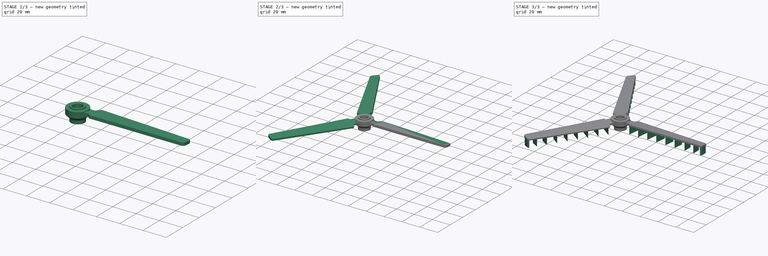
[diagram: build sequence overview — one tinted view per stage of 3, left to right]
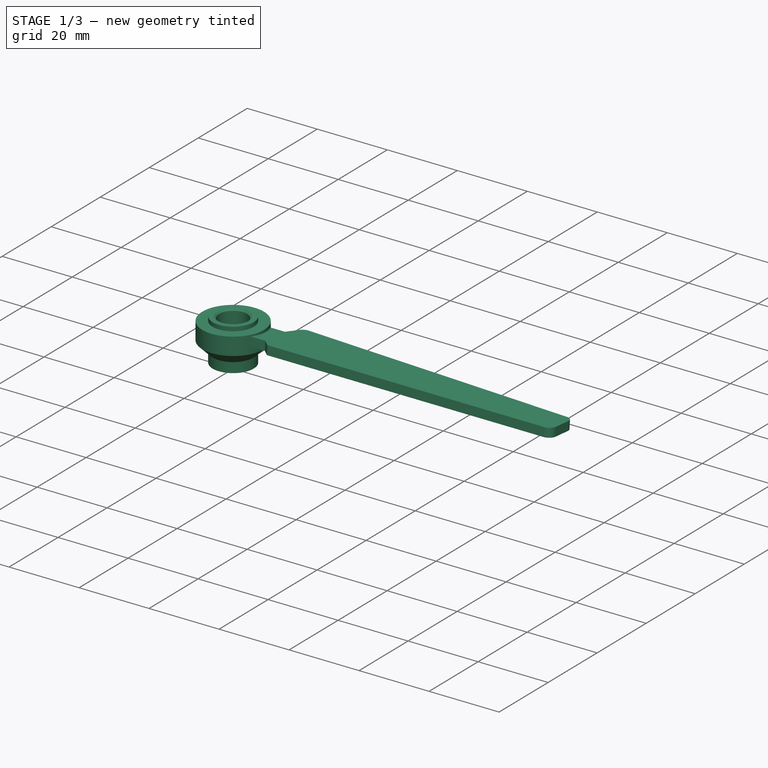
[diagram: stage 1 of 3 — iso view after this stage's code; geometry added in this stage tinted green]
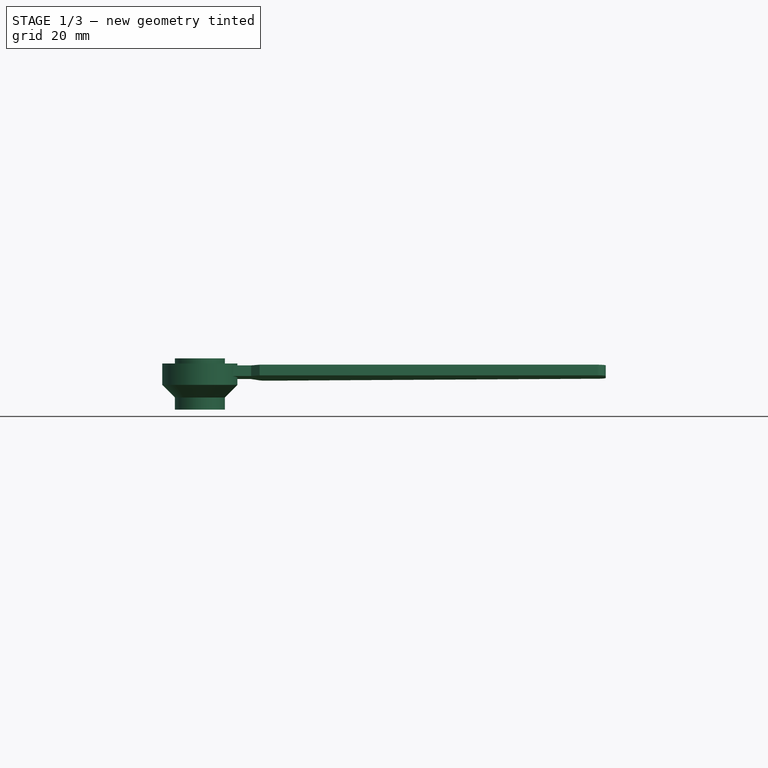
[diagram: stage 1 of 3 — front view after this stage's code; geometry added in this stage tinted green]
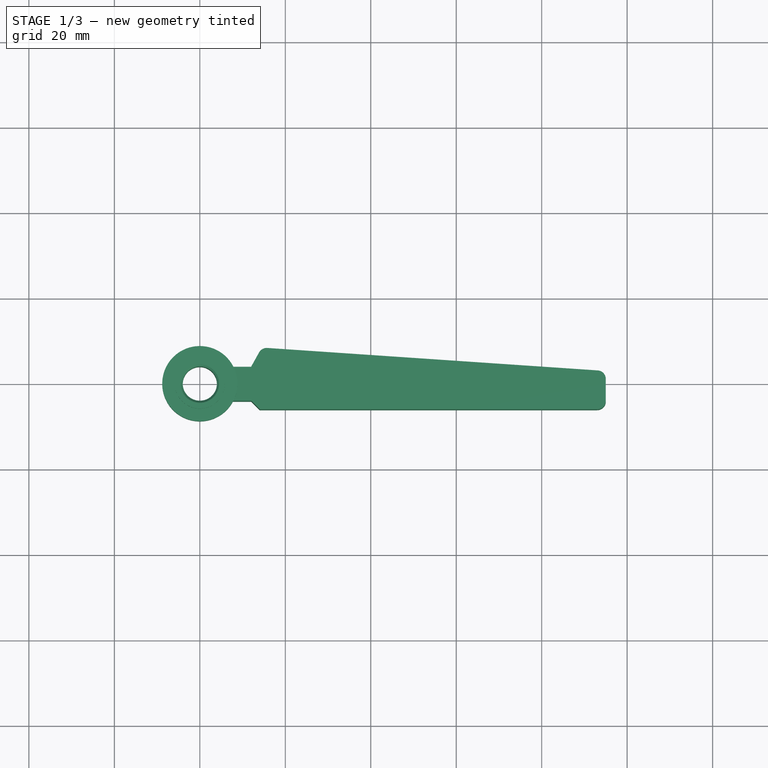
[diagram: stage 1 of 3 — top view after this stage's code; geometry added in this stage tinted green]
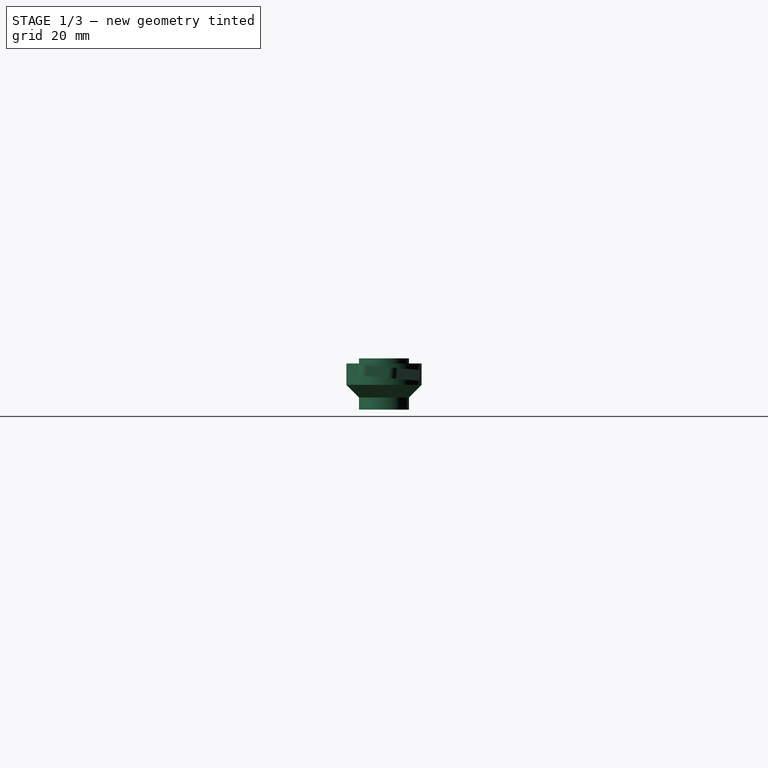
[diagram: stage 1 of 3 — right view after this stage's code; geometry added in this stage tinted green]
FCSTD DOCUMENT  (FreeCAD 1.0R39319 (Git))
Label: Playmobil5916Fix_Supported
License: All rights reserved
LicenseURL: https://en.wikipedia.org/wiki/All_rights_reserved
objects: Sketcher::SketchObject×4, PartDesign::Pad×2, PartDesign::PolarPattern×2, PartDesign::Revolution×1, PartDesign::Chamfer×1, PartDesign::Plane×1, PartDesign::Pocket×1, PartDesign::Fillet×1, PartDesign::Body×1
note: 32 computed .brp shape members not serialized (recipe doc carries the construction recipe); baked Part::Feature solids carry a one-line shape summary decoded from their .brp

FEATURE [Sketcher::SketchObject] Sketch
  ArcFitTolerance = 1e-06
  AttachmentSupport = -> [XZ_Plane]
  FullyConstrained = true
  MakeInternals = false
  MapMode = 5
  Placement = pos=(0,0,0) rot=(1,0,0;1.5708rad)
  expr: Constraints[17] = 11.7 / 2
  expr: Constraints[21] = 17.6 / 2
  expr: Constraints[22] = 8 / 2
  expr: Constraints[25] = 90 + 45
  sketch-geometry (9):
    g0: LineSegment StartX=4 StartY=0 StartZ=0 EndX=4 EndY=12 EndZ=0
    g1: LineSegment StartX=4 StartY=12 StartZ=0 EndX=5.85 EndY=12 EndZ=0
    g2: LineSegment StartX=5.85 StartY=12 StartZ=0 EndX=5.85 EndY=10.8 EndZ=0
    g3: LineSegment StartX=5.85 StartY=10.8 StartZ=0 EndX=8.8 EndY=10.8 EndZ=0
    g4: LineSegment StartX=8.8 StartY=10.8 StartZ=0 EndX=8.8 EndY=5.8 EndZ=0
    g5: LineSegment StartX=8.8 StartY=5.8 StartZ=0 EndX=5.85 EndY=2.85 EndZ=0
    g6: LineSegment StartX=5.85 StartY=2.85 StartZ=0 EndX=5.85 EndY=0 EndZ=0
    g7: LineSegment StartX=5.85 StartY=0 StartZ=0 EndX=4 EndY=0 EndZ=0
    g8: LineSegment [constr] StartX=5.85 StartY=10.8 StartZ=0 EndX=5.85 EndY=2.85 EndZ=0
  constraints (26):
    c: Distance(g0) = 12
    c: PointOnObject(g0,g-1)
    c: Vertical(g0)
    c: Coincident(g0,g1)
    c: Horizontal(g1)
    c: Coincident(g1,g2)
    c: Vertical(g2)
    c: Coincident(g2,g3)
    c: Horizontal(g3)
    c: Coincident(g3,g4)
    c: Vertical(g4)
    c: Coincident(g4,g5)
    c: Coincident(g5,g6)
    c: PointOnObject(g6,g-1)
    c: Vertical(g6)
    c: Coincident(g6,g7)
    c: Coincident(g7,g0)
    c: DistanceX(g-1,g6) = 5.85
    c: Coincident(g8,g2)
    c: Coincident(g8,g5)
    c: Vertical(g8)
    c: DistanceX(g-1,g4) = 8.8
    c: DistanceX(g-1,g0) = 4
    c: DistanceY(g2,g2) = 1.2
    c: DistanceY(g6,g4) = 5.8
    c: Angle(g6,g5) = 2.35619
FEATURE [PartDesign::Revolution] Revolution
  Angle = 360
  Angle2 = 60
  Axis = (0,2e-16,1)
  Base = (0,0,0)
  Placement = pos=(0,0,0) rot=(1,0,0;1.5708rad)
  Profile = -> Sketch
  ReferenceAxis = -> Sketch [V_Axis]
  Refine = true
  Reversed = true
  Suppressed = false
  Type = 0
FEATURE [PartDesign::Chamfer] Chamfer
  Angle = 45
  Base = -> Revolution [Edge2]
  BaseFeature = -> Revolution
  ChamferType = 0
  FlipDirection = false
  Placement = pos=(0,0,0) rot=(1,0,0;1.5708rad)
  Refine = true
  Size = 0.5
  Size2 = 1
  SupportTransform = false
  Suppressed = false
  UseAllEdges = false
FEATURE [PartDesign::Plane] DatumPlane
  AttachmentOffset = pos=(0,0,10) rot=(-1,0,0;0.087266rad)
  AttachmentSupport = -> [XY_Plane]
  Length = 178.854
  MapMode = 5
  Placement = pos=(0,0,10) rot=(-1,0,0;0.087266rad)
  ResizeMode = 0
  Width = 203.151
FEATURE [Sketcher::SketchObject] Sketch002
  ArcFitTolerance = 1e-06
  AttachmentSupport = -> [DatumPlane]
  FullyConstrained = true
  MakeInternals = false
  MapMode = 5
  Placement = pos=(0,1e-16,10) rot=(-1,0,0;0.087266rad)
  sketch-geometry (15):
    g0: LineSegment StartX=7 StartY=4 StartZ=0 EndX=7 EndY=-4 EndZ=0
    g1: LineSegment StartX=7 StartY=-4 StartZ=0 EndX=12 EndY=-4 EndZ=0
    g2: LineSegment StartX=12 StartY=-4 StartZ=0 EndX=14 EndY=-6 EndZ=0
    g3: LineSegment StartX=14 StartY=-6 StartZ=0 EndX=93 EndY=-6 EndZ=0
    g4: LineSegment StartX=95 StartY=-4 StartZ=0 EndX=95 EndY=1.13198 EndZ=0
    g5: LineSegment StartX=93.1363 StartY=3.12733 StartZ=0 EndX=15.7676 EndY=8.41339 EndZ=0
    g6: LineSegment StartX=13.883 StartY=7.38933 StartZ=0 EndX=12 EndY=4 EndZ=0
    g7: LineSegment StartX=12 StartY=4 StartZ=0 EndX=7 EndY=4 EndZ=0
    g8: LineSegment [constr] StartX=12 StartY=4 StartZ=0 EndX=12 EndY=-4 EndZ=0
    g9: ArcOfCircle CenterX=93 CenterY=-4 CenterZ=0 NormalX=0 NormalY=0 NormalZ=1 AngleXU=0 Radius=2 StartAngle=4.71239 EndAngle=6.28319
    g10: GeomPoint [constr] X=95 Y=-6 Z=0
    g11: ArcOfCircle CenterX=93 CenterY=1.13198 CenterZ=0 NormalX=0 NormalY=0 NormalZ=1 AngleXU=0 Radius=2 StartAngle=0 EndAngle=1.50258
    g12: GeomPoint [constr] X=95 Y=3 Z=0
    g13: ArcOfCircle CenterX=15.6313 CenterY=6.41805 CenterZ=0 NormalX=0 NormalY=0 NormalZ=1 AngleXU=0 Radius=2 StartAngle=1.50258 EndAngle=2.63449
    g14: GeomPoint [constr] X=14.5 Y=8.5 Z=0
  constraints (37):
    c: Coincident(g0,g1)
    c: Horizontal(g1)
    c: Coincident(g1,g2)
    c: Coincident(g2,g3)
    c: Horizontal(g3)
    c: Coincident(g6,g7)
    c: Coincident(g7,g0)
    c: Horizontal(g7)
    c: Symmetric(g0,g0,g-1)
    c: Equal(g7,g1)
    c: DistanceX(g-1,g0) = 7
    c: DistanceX(g-1,g10) = 95
    c: Vertical(g4)
    c: DistanceY(g10,g12) = 9
    c: DistanceY(g2,g14) = 14.5
    c: DistanceY(g0,g0) = 8
    c: DistanceY(g2,g1) = 2
    c: Coincident(g8,g6)
    c: Coincident(g8,g1)
    c: DistanceX(g6,g14) = 2.5
    c: DistanceX(g1,g2) = 2
    c: DistanceX(g7,g7) = 5
    c: PointOnObject(g10,g3)
    c: PointOnObject(g10,g4)
    c: Tangent(g3,g9) = -1.5708
    c: Tangent(g4,g9) = -1.5708
    c: PointOnObject(g12,g5)
    c: PointOnObject(g12,g4)
    c: Tangent(g5,g11) = -1.5708
    c: Tangent(g4,g11) = -1.5708
    c: Equal(g11,g9)
    c: Radius(g11) = 2
    c: PointOnObject(g14,g5)
    c: PointOnObject(g14,g6)
    c: Tangent(g5,g13) = -1.5708
    c: Tangent(g6,g13) = -1.5708
    c: Radius(g13) = 2
FEATURE [PartDesign::Pad] Pad001
  BaseFeature = -> Chamfer
  Direction = (0,0.0871557,0.996195)
  Length = 2.5
  Length2 = 10
  Placement = pos=(0,0,0) rot=(1,0,0;1.5708rad)
  Profile = -> Sketch002
  ReferenceAxis = -> Sketch002 [N_Axis]
  Refine = true
  Reversed = true
  Suppressed = false
  Type = 0
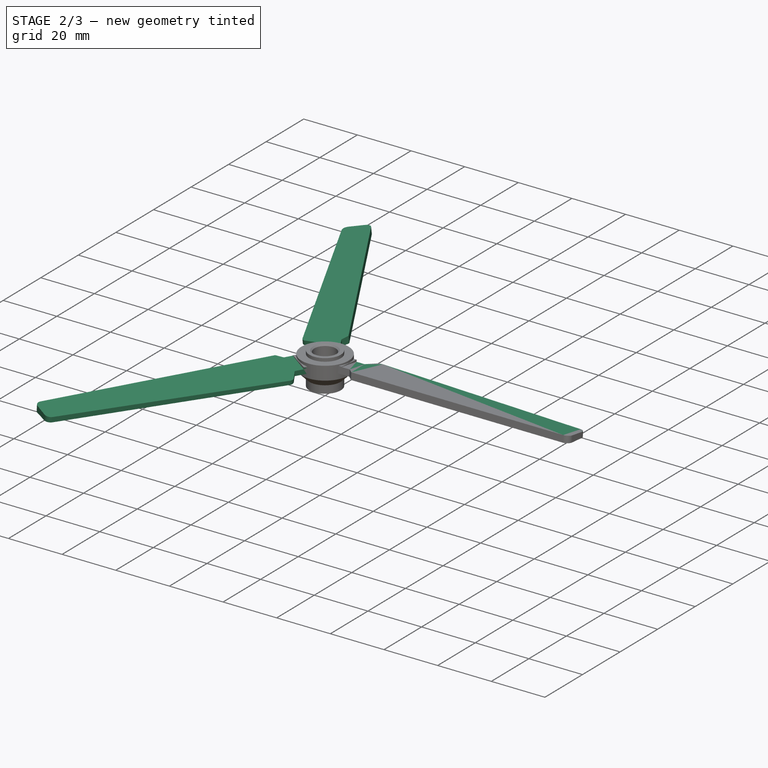
[diagram: stage 2 of 3 — iso view after this stage's code; geometry added in this stage tinted green]
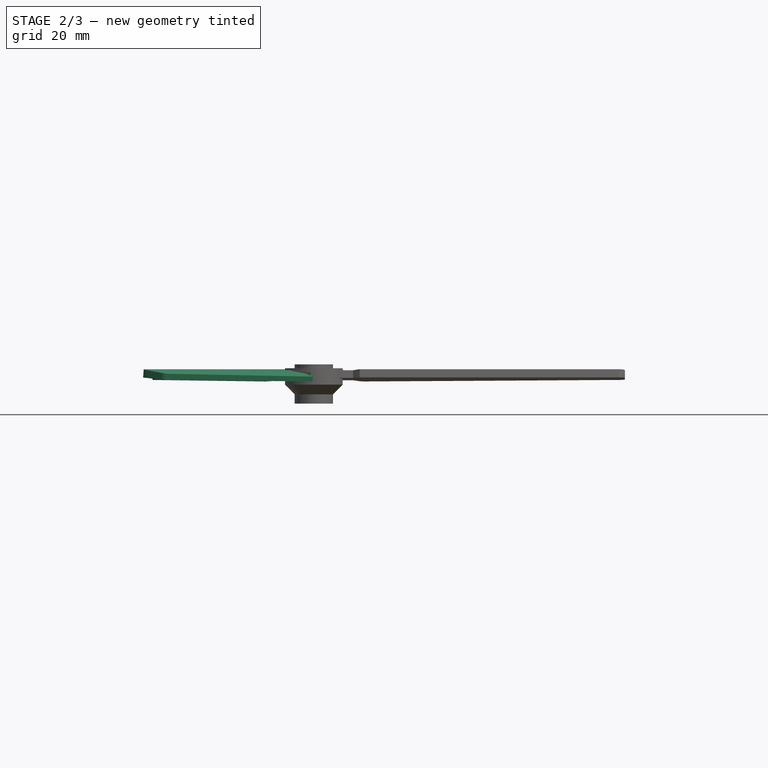
[diagram: stage 2 of 3 — front view after this stage's code; geometry added in this stage tinted green]
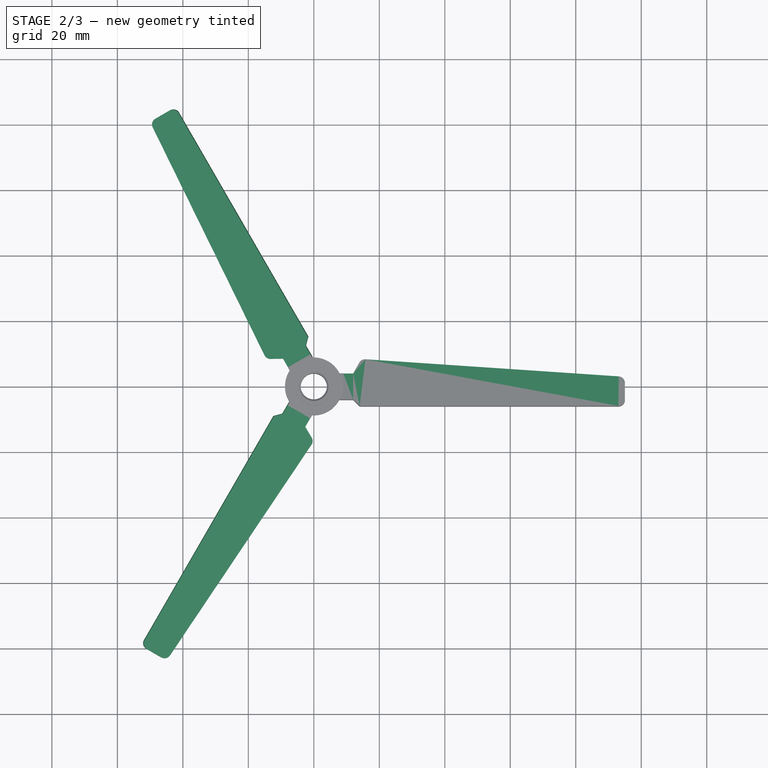
[diagram: stage 2 of 3 — top view after this stage's code; geometry added in this stage tinted green]
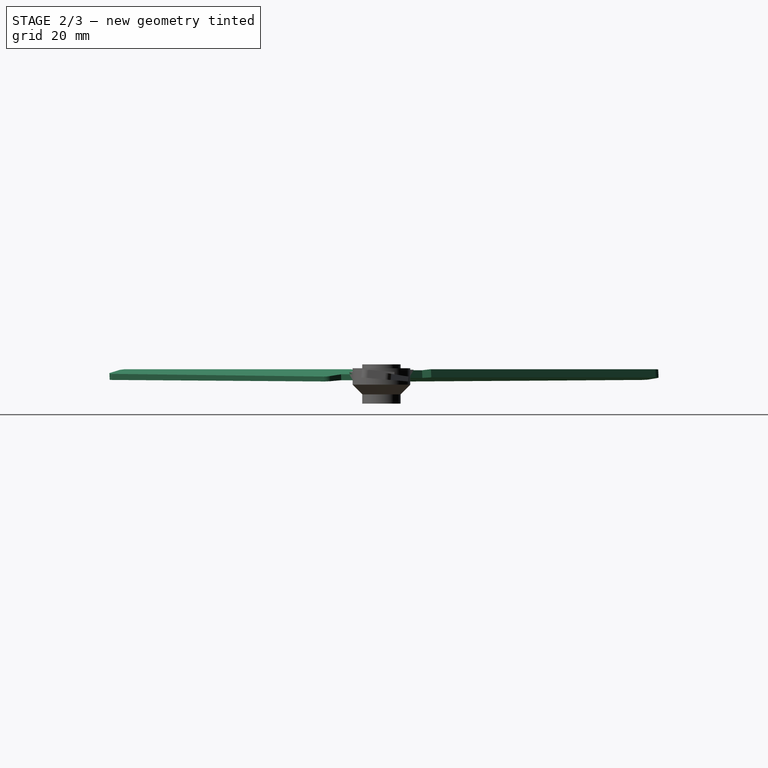
[diagram: stage 2 of 3 — right view after this stage's code; geometry added in this stage tinted green]
FEATURE [Sketcher::SketchObject] Sketch003
  ArcFitTolerance = 1e-06
  AttachmentSupport = -> [Pad001]
  ExternalGeometry = -> [Pad001]
  FullyConstrained = true
  MakeInternals = false
  MapMode = 5
  Placement = pos=(95,0,0) rot=(0.707107,0,0.707107;3.14159rad)
  sketch-geometry (4):
    g0: LineSegment StartX=10.8386 StartY=7.97717 StartZ=0 EndX=7.78329 EndY=-11.3814 EndZ=0
    g1: LineSegment StartX=7.78329 StartY=-11.3814 StartZ=0 EndX=10.8386 EndY=-11.3814 EndZ=0
    g2: LineSegment StartX=10.8386 StartY=-11.3814 StartZ=0 EndX=10.8386 EndY=7.97717 EndZ=0
    g3: GeomPoint X=8.27053 Y=-8.29422 Z=0
  constraints (11):
    c: Coincident(g0,g1)
    c: Horizontal(g1)
    c: Coincident(g1,g2)
    c: Coincident(g2,g0)
    c: Vertical(g2)
    c: PointOnObject(g-3,g0)
    c: DistanceY(g-3,g0) = 2
    c: DistanceY(g0,g-4) = 3
    c: PointOnObject(g3,g0)
    c: PointOnObject(g3,g-4)
    c: Distance(g-4,g3) = 1.5
FEATURE [PartDesign::Pocket] Pocket
  BaseFeature = -> Pad001
  Direction = (-1,0,2e-16)
  Length = 86
  Length2 = 5
  Placement = pos=(0,0,0) rot=(1,0,0;1.5708rad)
  Profile = -> Sketch003
  ReferenceAxis = -> Sketch003 [N_Axis]
  Refine = true
  Suppressed = false
  Type = 0
FEATURE [PartDesign::PolarPattern] PolarPattern001
  Angle = 360
  Axis = -> Z_Axis
  BaseFeature = -> Pocket
  Mode = 0
  Occurrences = 3
  Offset = 120
  Originals = -> [Pad001,Pocket]
  Placement = pos=(0,0,0) rot=(1,0,0;1.5708rad)
  Refine = true
  Suppressed = false
  TransformMode = 0
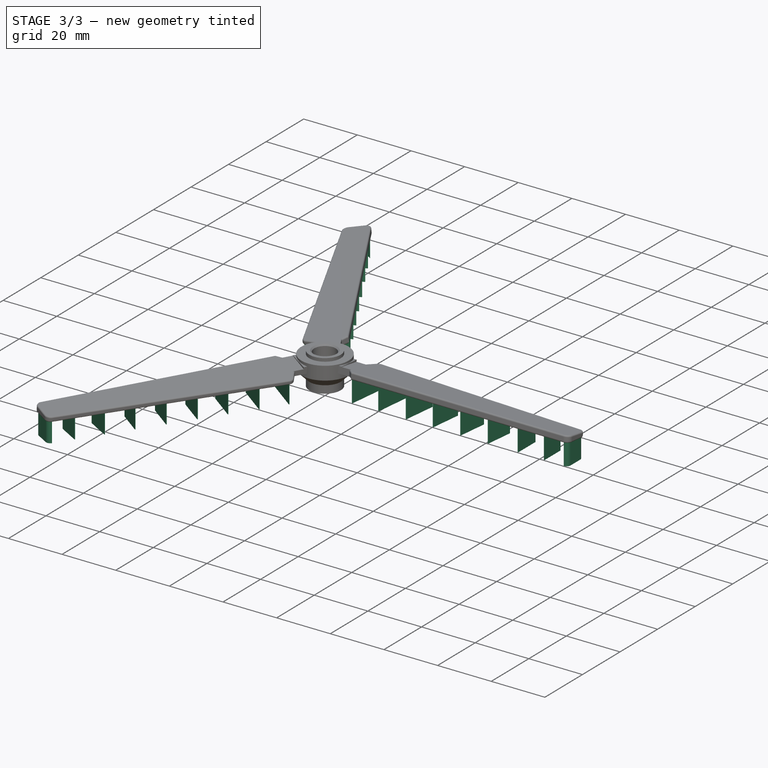
[diagram: stage 3 of 3 — iso view after this stage's code; geometry added in this stage tinted green]
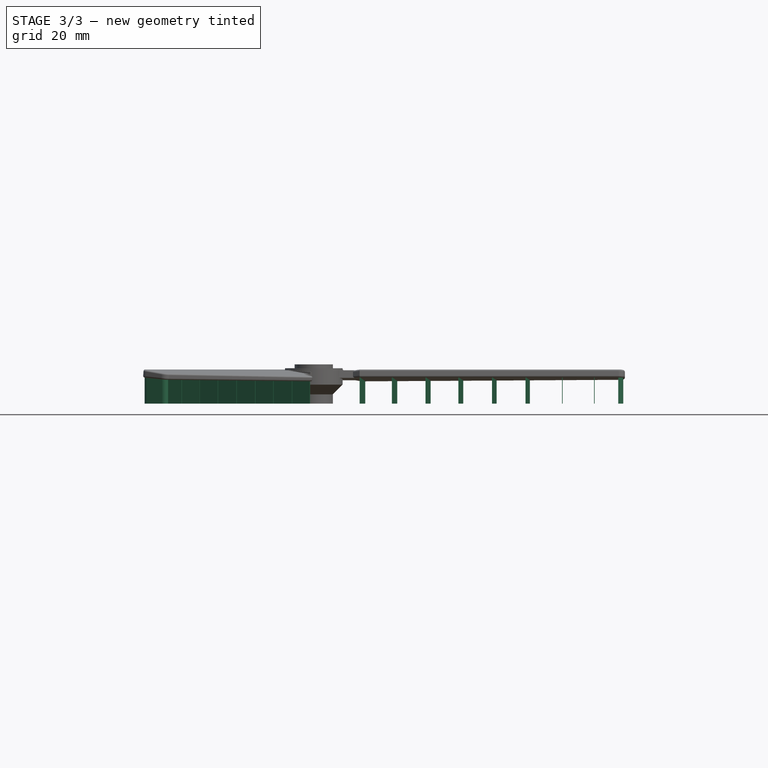
[diagram: stage 3 of 3 — front view after this stage's code; geometry added in this stage tinted green]
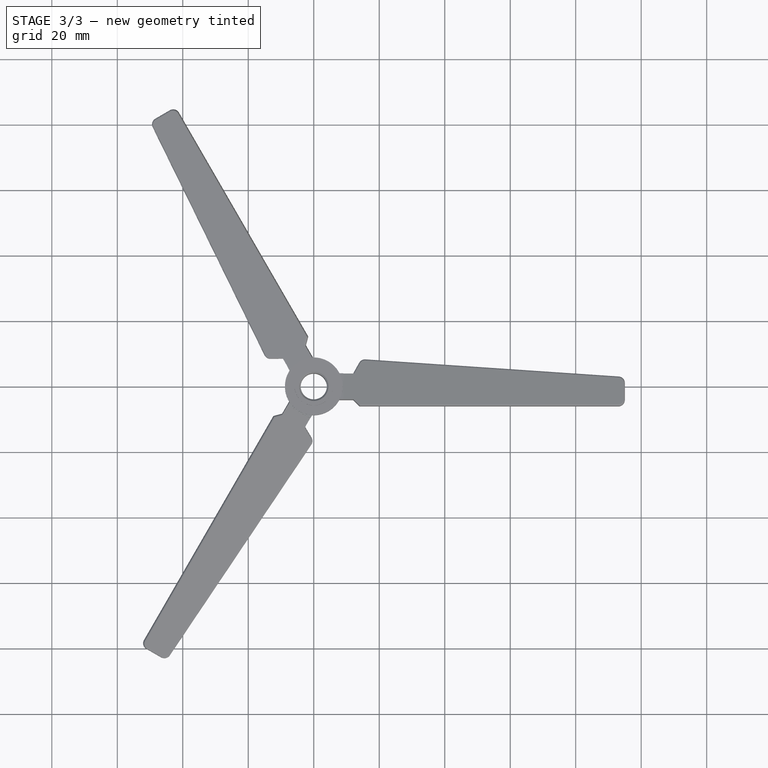
[diagram: stage 3 of 3 — top view after this stage's code; geometry added in this stage tinted green]
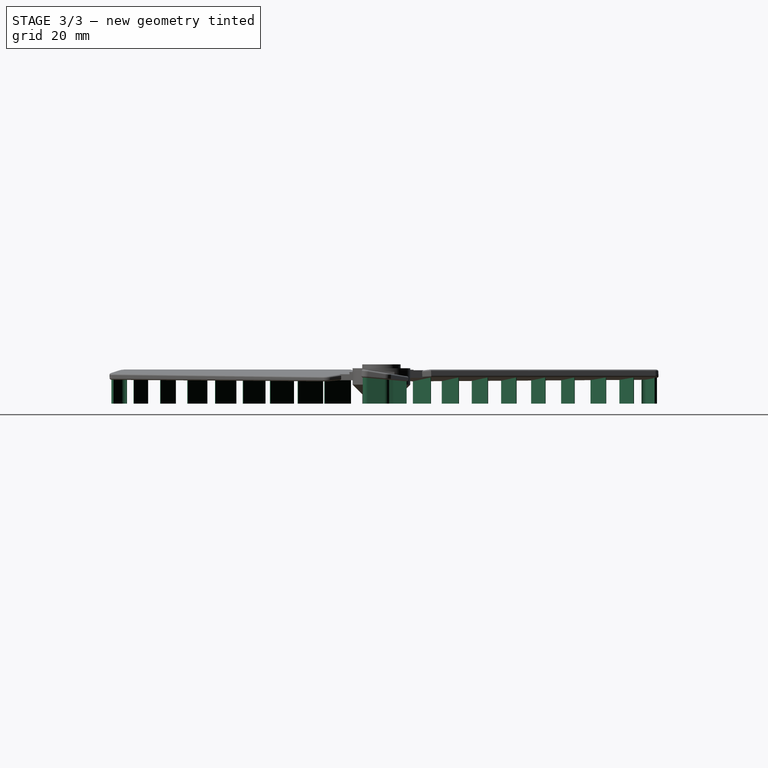
[diagram: stage 3 of 3 — right view after this stage's code; geometry added in this stage tinted green]
FEATURE [PartDesign::Fillet] Fillet
  Base = -> PolarPattern001 [Edge124,Edge72,Edge41,Edge91,Edge53,Edge108,Edge77,Edge134,Edge118,Edge58,Edge94,Edge46]
  BaseFeature = -> PolarPattern001
  Placement = pos=(0,0,0) rot=(1,0,0;1.5708rad)
  Radius = 0.5
  Refine = true
  SupportTransform = false
  Suppressed = false
  UseAllEdges = false
FEATURE [Sketcher::SketchObject] Sketch004
  ArcFitTolerance = 1e-06
  AttachmentSupport = -> [XY_Plane]
  ExternalGeometry = -> [Fillet]
  FullyConstrained = true
  MakeInternals = false
  MapMode = 5
  expr: Constraints[90] = .Constraints.bridge
  expr: Constraints[91] = .Constraints.bridge
  expr: Constraints[92] = .Constraints.bridge
  expr: Constraints[93] = .Constraints.bridge
  expr: Constraints[94] = .Constraints.bridge
  expr: Constraints[95] = .Constraints.bridge
  sketch-geometry (44):
    g0: LineSegment StartX=-12.0373 StartY=-9.45524 StartZ=0 EndX=-1.22733 EndY=-17.4589 EndZ=0
    g1: LineSegment StartX=-1.22733 StartY=-17.4589 StartZ=0 EndX=-1.1158 EndY=-17.2929 EndZ=0
    g2: LineSegment StartX=-1.1158 StartY=-17.2929 StartZ=0 EndX=-11.9367 EndY=-9.28109 EndZ=0
    g3: LineSegment StartX=-11.9367 StartY=-9.28109 StartZ=0 EndX=-12.0373 EndY=-9.45524 EndZ=0
    g4: LineSegment StartX=-16.964 StartY=-17.9885 StartZ=0 EndX=-16.8634 EndY=-17.8144 EndZ=0
    g5: LineSegment StartX=-16.8634 StartY=-17.8144 StartZ=0 EndX=-6.58081 EndY=-25.4276 EndZ=0
    g6: LineSegment StartX=-6.58081 StartY=-25.4276 StartZ=0 EndX=-6.69234 EndY=-25.5936 EndZ=0
    g7: LineSegment StartX=-6.69234 StartY=-25.5936 StartZ=0 EndX=-16.964 EndY=-17.9885 EndZ=0
    g8: LineSegment StartX=-21.9912 StartY=-26.696 StartZ=0 EndX=-12.2689 EndY=-33.8944 EndZ=0
    g9: LineSegment StartX=-12.2689 StartY=-33.8944 StartZ=0 EndX=-12.3804 EndY=-34.0604 EndZ=0
    g10: LineSegment StartX=-12.3804 StartY=-34.0604 StartZ=0 EndX=-22.0917 EndY=-26.8701 EndZ=0
    g11: LineSegment StartX=-22.0917 StartY=-26.8701 StartZ=0 EndX=-21.9912 EndY=-26.696 EndZ=0
    g12: LineSegment StartX=-27.0184 StartY=-35.4034 StartZ=0 EndX=-17.8454 EndY=-42.1951 EndZ=0
    g13: LineSegment StartX=-17.8454 StartY=-42.1951 StartZ=0 EndX=-17.957 EndY=-42.3611 EndZ=0
    g14: LineSegment StartX=-17.957 StartY=-42.3611 StartZ=0 EndX=-27.119 EndY=-35.5775 EndZ=0
    g15: LineSegment StartX=-27.119 StartY=-35.5775 StartZ=0 EndX=-27.0184 EndY=-35.4034 EndZ=0
    g16: LineSegment StartX=-32.1462 StartY=-44.285 StartZ=0 EndX=-23.5335 EndY=-50.6618 EndZ=0
    g17: LineSegment StartX=-23.5335 StartY=-50.6618 StartZ=0 EndX=-23.645 EndY=-50.8279 EndZ=0
    g18: LineSegment StartX=-23.645 StartY=-50.8279 StartZ=0 EndX=-32.2468 EndY=-44.4591 EndZ=0
    g19: LineSegment StartX=-32.2468 StartY=-44.4591 StartZ=0 EndX=-32.1462 EndY=-44.285 EndZ=0
    g20: LineSegment StartX=-37.3746 StartY=-53.3407 StartZ=0 EndX=-29.3331 EndY=-59.2946 EndZ=0
    g21: LineSegment StartX=-29.3331 StartY=-59.2946 StartZ=0 EndX=-29.2216 EndY=-59.1286 EndZ=0
    g22: LineSegment StartX=-29.2216 StartY=-59.1286 StartZ=0 EndX=-37.274 EndY=-53.1666 EndZ=0
    g23: LineSegment StartX=-37.274 StartY=-53.1666 StartZ=0 EndX=-37.3746 EndY=-53.3407 EndZ=0
    g24: LineSegment StartX=-42.9308 StartY=-62.9643 StartZ=0 EndX=-34.9096 EndY=-67.5953 EndZ=0
    g25: LineSegment StartX=-34.9096 StartY=-67.5953 StartZ=0 EndX=-34.7981 EndY=-67.4293 EndZ=0
    g26: LineSegment StartX=-34.7981 StartY=-67.4293 StartZ=0 EndX=-42.831 EndY=-62.7915 EndZ=0
    g27: LineSegment StartX=-42.831 StartY=-62.7915 StartZ=0 EndX=-42.9308 EndY=-62.9643 EndZ=0
    g28: LineSegment StartX=-47.8195 StartY=-71.4318 StartZ=0 EndX=-40.3747 EndY=-75.7301 EndZ=0
    g29: LineSegment StartX=-40.3747 StartY=-75.7301 StartZ=0 EndX=-40.2631 EndY=-75.564 EndZ=0
    g30: LineSegment StartX=-40.2631 StartY=-75.564 StartZ=0 EndX=-47.7197 EndY=-71.259 EndZ=0
    g31: LineSegment StartX=-47.7197 StartY=-71.259 StartZ=0 EndX=-47.8195 EndY=-71.4318 EndZ=0
    g32: LineSegment StartX=-50.8896 StartY=-79.7381 StartZ=0 EndX=-46.4621 EndY=-82.2943 EndZ=0
    g33: LineSegment StartX=-44.4721 StartY=-81.8292 StartZ=0 EndX=-44.6094 EndY=-81.6837 EndZ=0
    g34: LineSegment StartX=-51.2609 StartY=-77.7925 StartZ=0 EndX=-51.4337 EndY=-77.6919 EndZ=0
    g35: ArcOfCircle CenterX=-50.1425 CenterY=-78.444 CenterZ=0 NormalX=0 NormalY=0 NormalZ=1 AngleXU=0 Radius=1.4943 StartAngle=2.61418 EndAngle=4.18879
    g36: ArcOfCircle CenterX=-45.7148 CenterY=-81.002 CenterZ=0 NormalX=0 NormalY=0 NormalZ=1 AngleXU=0 Radius=1.49279 StartAngle=4.18809 EndAngle=5.69588
    g37: ArcOfCircle CenterX=-45.7121 CenterY=-80.9953 CenterZ=0 NormalX=0 NormalY=0 NormalZ=1 AngleXU=0 Radius=1.3 StartAngle=4.18879 EndAngle=5.72507
    g38: ArcOfCircle CenterX=-50.1425 CenterY=-78.444 CenterZ=0 NormalX=0 NormalY=0 NormalZ=1 AngleXU=0 Radius=1.2943 StartAngle=2.61418 EndAngle=4.18879
    g39: GeomPoint [constr] X=-50.8896 Y=-79.7381 Z=0
    g40: LineSegment [constr] StartX=-46.3621 StartY=-82.1211 StartZ=0 EndX=-46.4621 EndY=-82.2943 EndZ=0
    g41: LineSegment [constr] StartX=-50.7896 StartY=-79.5649 StartZ=0 EndX=-50.8896 EndY=-79.7381 EndZ=0
    g42: LineSegment StartX=-50.7896 StartY=-79.5649 StartZ=0 EndX=-46.3621 EndY=-82.1211 EndZ=0
    g43: GeomPoint [constr] X=-47.1435 Y=-81.4346 Z=0
  constraints (124):
    c: Coincident(g-5,g0)
    c: Coincident(g0,g-3)
    c: Coincident(g0,g1)
    c: PointOnObject(g1,g-3)
    c: Coincident(g1,g2)
    c: PointOnObject(g2,g-5)
    c: Coincident(g2,g3)
    c: Coincident(g3,g0)
    c: Parallel(g2,g0)
    c: Distance(g1) = 0.2
    c: PointOnObject(g4,g-5)
    c: PointOnObject(g4,g-5)
    c: Coincident(g4,g5)
    c: PointOnObject(g5,g-3)
    c: Coincident(g5,g6)
    c: PointOnObject(g6,g-3)
    c: Coincident(g6,g7)
    c: Coincident(g7,g4)
    c: Parallel(g5,g7)
    c: Parallel(g7,g2)
    c: Equal(g1,g6)
    c: Distance(g6,g1) = 10  'bridge'
    c: PointOnObject(g8,g-5)
    c: PointOnObject(g8,g-3)
    c: Coincident(g8,g9)
    c: PointOnObject(g9,g-3)
    c: Coincident(g9,g10)
    c: PointOnObject(g10,g-5)
    c: Coincident(g10,g11)
    c: Coincident(g11,g8)
    c: PointOnObject(g12,g-5)
    c: PointOnObject(g12,g-3)
    c: Coincident(g12,g13)
    c: PointOnObject(g13,g-3)
    c: Coincident(g13,g14)
    c: PointOnObject(g14,g-5)
    c: Coincident(g14,g15)
    c: Coincident(g15,g12)
    c: PointOnObject(g16,g-5)
    c: PointOnObject(g16,g-3)
    c: Coincident(g16,g17)
    c: PointOnObject(g17,g-3)
    c: Coincident(g17,g18)
    c: PointOnObject(g18,g-5)
    c: Coincident(g18,g19)
    c: Coincident(g19,g16)
    c: PointOnObject(g20,g-5)
    c: PointOnObject(g20,g-3)
    c: Coincident(g20,g21)
    c: PointOnObject(g21,g-3)
    c: Coincident(g21,g22)
    c: PointOnObject(g22,g-5)
    c: Coincident(g22,g23)
    c: Coincident(g23,g20)
    c: PointOnObject(g24,g-5)
    c: PointOnObject(g24,g-3)
    c: Coincident(g24,g25)
    c: PointOnObject(g25,g-3)
    c: Coincident(g25,g26)
    c: PointOnObject(g26,g-5)
    c: Coincident(g26,g27)
    c: Coincident(g27,g24)
    c: PointOnObject(g28,g-5)
    c: PointOnObject(g28,g-3)
    c: Coincident(g28,g29)
    c: PointOnObject(g29,g-3)
    c: Coincident(g29,g30)
    c: PointOnObject(g30,g-5)
    c: Coincident(g30,g31)
    c: Coincident(g31,g28)
    c: Coincident(g32,g-4)
    c: Parallel(g7,g8)
    c: Parallel(g8,g10)
    c: Parallel(g10,g12)
    c: Parallel(g12,g14)
    c: Parallel(g14,g16)
    c: Parallel(g18,g16)
    c: Parallel(g18,g22)
    c: Parallel(g22,g20)
    c: Parallel(g30,g28)
    c: Parallel(g28,g26)
    c: Parallel(g26,g24)
    c: Equal(g9,g13)
    c: Equal(g13,g17)
    c: Equal(g17,g21)
    c: Equal(g21,g25)
    c: Equal(g25,g29)
    c: Equal(g29,g33)
    c: Equal(g6,g9)
    c: Equal(g33,g34)
    c: Distance(g6,g8) = 10
    c: Distance(g8,g12) = 10
    c: Distance(g13,g16) = 10
    c: Distance(g17,g21) = 10
    c: Distance(g20,g24) = 10
    c: Distance(g25,g28) = 10
    c: Coincident(g36,g32)
    c: Coincident(g37,g-6)
    c: Coincident(g37,g33)
    c: Coincident(g38,g35)
    c: Coincident(g38,g34)
    c: Coincident(g33,g36)
    c: Coincident(g-3,g33)
    c: Coincident(g32,g35)
    c: Coincident(g32,g-4)
    c: Coincident(g34,g35)
    c: Coincident(g34,g-5)
    c: PointOnObject(g39,g-7)
    c: PointOnObject(g39,g35)
    c: Tangent(g-7,g35,g39) = -1.5708
    c: Coincident(g40,g32)
    c: Coincident(g41,g39)
    c: Coincident(g42,g38)
    c: Coincident(g42,g37)
    c: Coincident(g37,g40)
    c: Coincident(g38,g41)
    c: Perpendicular(g40,g32)
    c: Perpendicular(g41,g32)
    c: Equal(g29,g40)
    c: Parallel(g42,g32)
    c: PointOnObject(g43,g-6)
    c: PointOnObject(g43,g36)
    c: Tangent(g-6,g36,g43) = -1.5708
    c: Parallel(g28,g32)
FEATURE [PartDesign::Pad] Pad
  BaseFeature = -> Fillet
  Direction = (0,0,1)
  Length = 10
  Length2 = 10
  Placement = pos=(0,0,0) rot=(1,0,0;1.5708rad)
  Profile = -> Sketch004
  ReferenceAxis = -> Sketch004 [N_Axis]
  Refine = true
  Suppressed = false
  Type = 2
FEATURE [PartDesign::PolarPattern] PolarPattern
  Angle = 360
  Axis = -> Sketch004 [N_Axis]
  BaseFeature = -> Pad
  Mode = 0
  Occurrences = 3
  Offset = 120
  Originals = -> [Pad]
  Placement = pos=(0,0,0) rot=(1,0,0;1.5708rad)
  Refine = true
  Suppressed = false
  TransformMode = 0
FEATURE [PartDesign::Body] Body
  AllowCompound = false
  Group = -> [Sketch,Revolution,Chamfer,DatumPlane,Sketch002,Pad001,Sketch003,Pocket,PolarPattern001,Fillet,Sketch004,Pad,PolarPattern]
  Origin = -> Origin
  Tip = -> PolarPattern
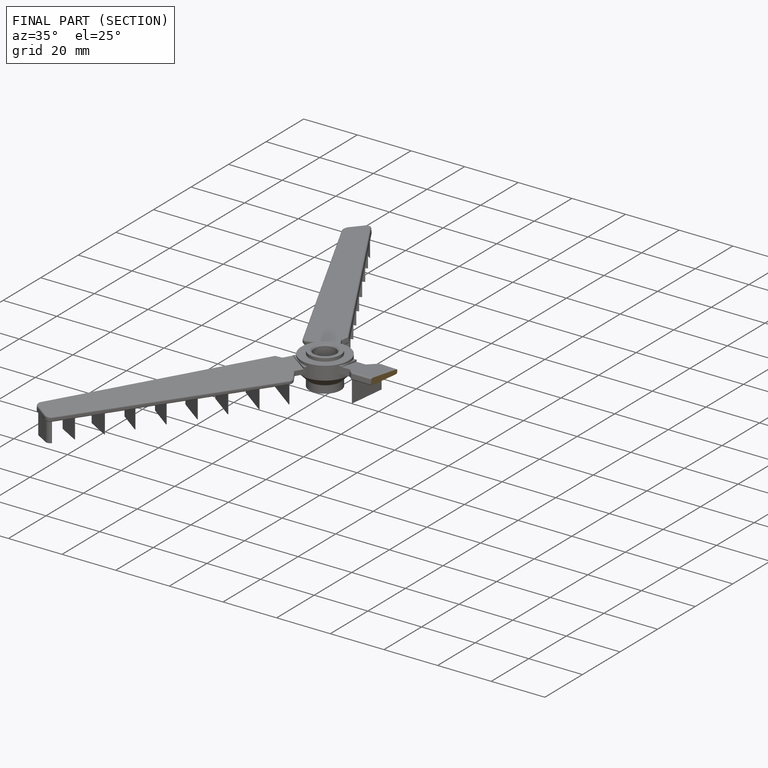
[diagram: finished part — half-section view (interior)]
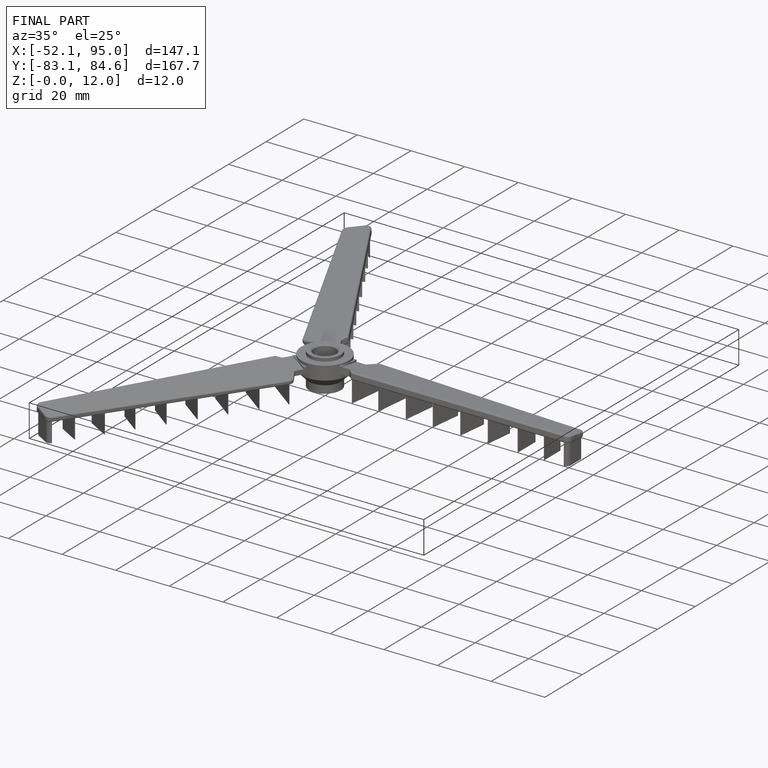
[diagram: finished part — iso view with bounding-box wireframe]
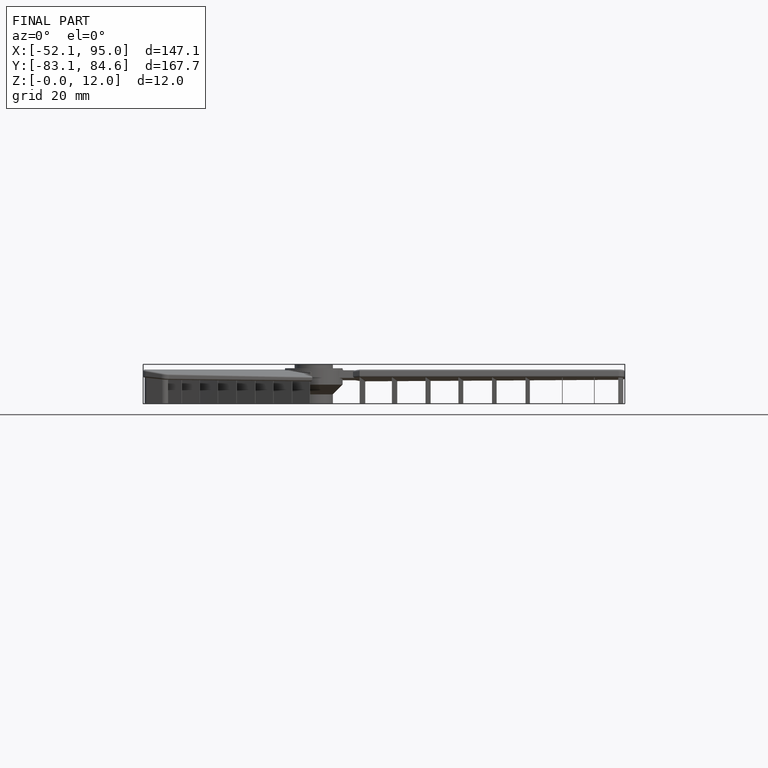
[diagram: finished part — front view with bounding-box wireframe]
